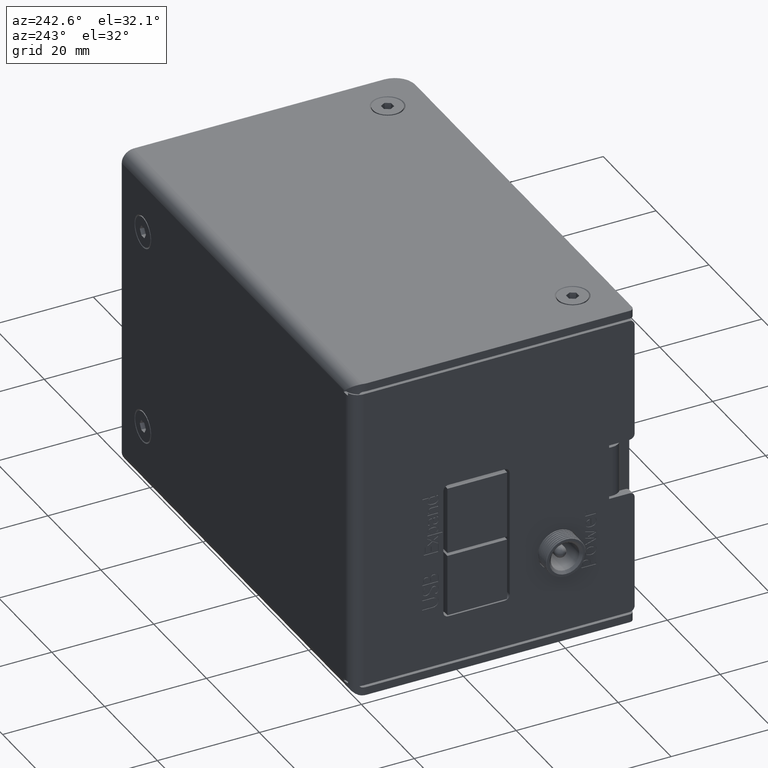
[diagram: clean part render]
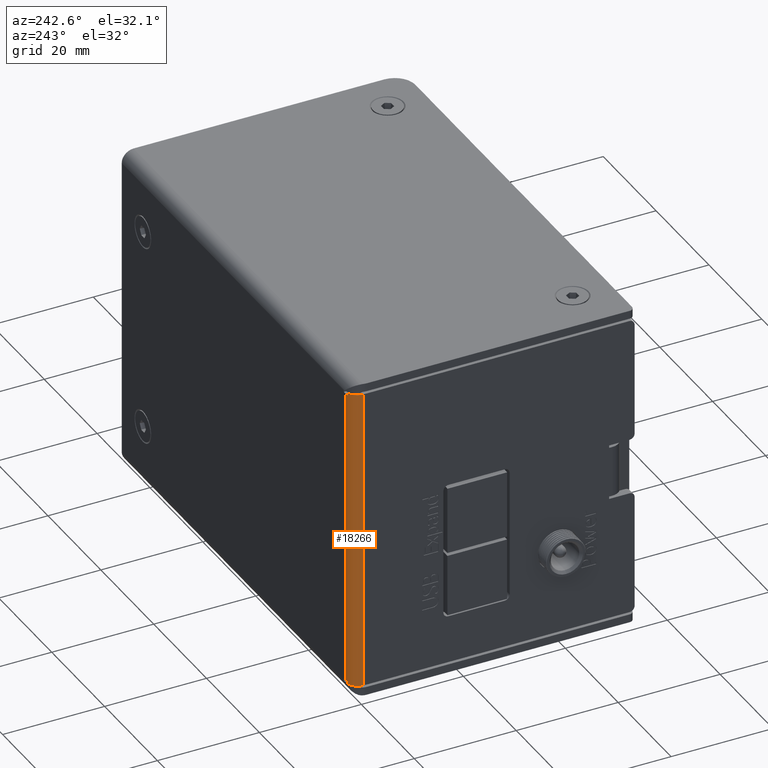
[diagram: same view with one face highlighted and labeled with its STEP entity id]
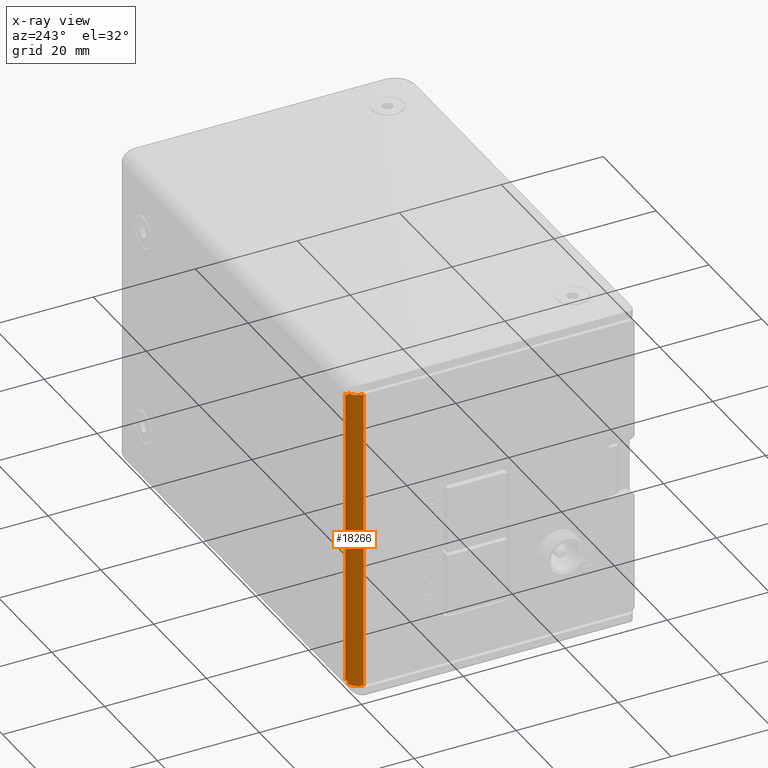
[diagram: x-ray of the same camera — body ghosted, the highlighted face saturated]
A machine part, auxiliary view. The second image highlights one B-rep face of the part: STEP entity #18266.
The next image is the same camera in x-ray: the body ghosted, the highlighted face saturated — about 0% of this face is hidden behind the body in this view.
In plain terms, the highlighted cylindrical surface (edge-blend (fillet) strip) has radius 2.3366 mm, axis along (0, 0, -1).
Its self-contained STEP definition (entity closure, byte-faithful):
#631 = CARTESIAN_POINT ( 'NONE',  ( -38.70300153493759900, 41.95498347007510600, -29.91339999999999600 ) ) ;
#690 = CARTESIAN_POINT ( 'NONE',  ( -37.96640153493761700, 39.73752546596318800, -29.41339999999999600 ) ) ;
#714 = DIRECTION ( 'NONE',  ( -0.0000000000000000000, -0.0000000000000000000, -1.000000000000000000 ) ) ;
#1486 = CIRCLE ( 'NONE', #36183, 2.336599999999994500 ) ;
#3655 = CARTESIAN_POINT ( 'NONE',  ( -37.96640153493761700, 39.73752546596318800, -29.91339999999999600 ) ) ;
#3946 = AXIS2_PLACEMENT_3D ( 'NONE', #690, #49252, #27696 ) ;
#5749 = LINE ( 'NONE', #631, #65399 ) ;
#7286 = VECTOR ( 'NONE', #15389, 1000.000000000000000 ) ;
#8407 = VERTEX_POINT ( 'NONE', #15579 ) ;
#8443 = CARTESIAN_POINT ( 'NONE',  ( -38.70300153493759900, 41.95498347007510600, 29.91340000000000300 ) ) ;
#8768 = AXIS2_PLACEMENT_3D ( 'NONE', #63889, #53051, #31231 ) ;
#9683 = ORIENTED_EDGE ( 'NONE', *, *, #29442, .F. ) ;
#10176 = EDGE_CURVE ( 'NONE', #8407, #61623, #1486, .T. ) ;
#10770 = CARTESIAN_POINT ( 'NONE',  ( -38.70300153493759900, 41.95498347007510600, 29.41340000000000600 ) ) ;
#11147 = VECTOR ( 'NONE', #15421, 1000.000000000000000 ) ;
#11427 = CARTESIAN_POINT ( 'NONE',  ( -37.96640153493761700, 42.07412546596318500, -29.66339999999999200 ) ) ;
#12934 = EDGE_CURVE ( 'NONE', #47992, #42582, #5749, .T. ) ;
#13010 = CIRCLE ( 'NONE', #3946, 2.336599999999994500 ) ;
#15389 = DIRECTION ( 'NONE',  ( -0.0000000000000000000, -0.0000000000000000000, -1.000000000000000000 ) ) ;
#15421 = DIRECTION ( 'NONE',  ( 1.524529516703132800E-031, -5.299087409721818400E-046, -1.000000000000000000 ) ) ;
#15579 = CARTESIAN_POINT ( 'NONE',  ( -40.30300153493761400, 39.73752546596319500, 29.91340000000000300 ) ) ;
#17243 = CIRCLE ( 'NONE', #58751, 2.336599999999994500 ) ;
#18109 = CARTESIAN_POINT ( 'NONE',  ( -37.96640153493761700, 42.07412546596318500, 29.41340000000000300 ) ) ;
#18266 = ADVANCED_FACE ( 'NONE', ( #25220 ), #20176, .T. ) ;
#19110 = VERTEX_POINT ( 'NONE', #66932 ) ;
#20176 = CYLINDRICAL_SURFACE ( 'NONE', #51445, 2.336599999999994500 ) ;
#21782 = EDGE_CURVE ( 'NONE', #42582, #33718, #13010, .T. ) ;
#22453 = DIRECTION ( 'NONE',  ( -0.0000000000000000000, -0.0000000000000000000, 1.000000000000000000 ) ) ;
#22875 = LINE ( 'NONE', #30956, #11147 ) ;
#24146 = LINE ( 'NONE', #46652, #7286 ) ;
#25220 = FACE_OUTER_BOUND ( 'NONE', #47733, .T. ) ;
#27696 = DIRECTION ( 'NONE',  ( 1.000000000000000000, -5.939308314565817400E-015, 0.0000000000000000000 ) ) ;
#28355 = CARTESIAN_POINT ( 'NONE',  ( -38.70300153493759900, 41.95498347007510600, -29.41339999999999600 ) ) ;
#29442 = EDGE_CURVE ( 'NONE', #33718, #59117, #41019, .T. ) ;
#30606 = DIRECTION ( 'NONE',  ( 0.0000000000000000000, 0.0000000000000000000, -1.000000000000000000 ) ) ;
#30956 = CARTESIAN_POINT ( 'NONE',  ( -40.30300153493761400, 39.73752546596319500, 3.469446951953607100E-015 ) ) ;
#31231 = DIRECTION ( 'NONE',  ( 1.000000000000000000, -5.939308314565817400E-015, 0.0000000000000000000 ) ) ;
#31842 = EDGE_CURVE ( 'NONE', #61623, #52606, #24146, .T. ) ;
#33718 = VERTEX_POINT ( 'NONE', #54504 ) ;
#33860 = DIRECTION ( 'NONE',  ( -1.000000000000000000, 2.969654157282908700E-015, 0.0000000000000000000 ) ) ;
#34070 = CIRCLE ( 'NONE', #8768, 2.336599999999994500 ) ;
#34521 = CARTESIAN_POINT ( 'NONE',  ( -38.70300153493759900, 41.95498347007510600, -29.91339999999999600 ) ) ;
#35437 = ORIENTED_EDGE ( 'NONE', *, *, #12934, .F. ) ;
#36183 = AXIS2_PLACEMENT_3D ( 'NONE', #59890, #714, #37533 ) ;
#36218 = DIRECTION ( 'NONE',  ( -1.000000000000000000, 0.0000000000000000000, 0.0000000000000000000 ) ) ;
#37533 = DIRECTION ( 'NONE',  ( -1.000000000000000000, 0.0000000000000000000, 0.0000000000000000000 ) ) ;
#40790 = ORIENTED_EDGE ( 'NONE', *, *, #49555, .F. ) ;
#41019 = LINE ( 'NONE', #11427, #67953 ) ;
#42274 = ORIENTED_EDGE ( 'NONE', *, *, #31842, .T. ) ;
#42582 = VERTEX_POINT ( 'NONE', #28355 ) ;
#44658 = CARTESIAN_POINT ( 'NONE',  ( -37.96640153493761700, 39.73752546596318800, -29.66339999999999200 ) ) ;
#46652 = CARTESIAN_POINT ( 'NONE',  ( -38.70300153493759900, 41.95498347007510600, 29.91340000000000300 ) ) ;
#47604 = EDGE_CURVE ( 'NONE', #19110, #47992, #17243, .T. ) ;
#47733 = EDGE_LOOP ( 'NONE', ( #40790, #49280, #42274, #49180, #9683, #58074, #35437, #50685 ) ) ;
#47992 = VERTEX_POINT ( 'NONE', #34521 ) ;
#48474 = DIRECTION ( 'NONE',  ( -0.0000000000000000000, -0.0000000000000000000, 1.000000000000000000 ) ) ;
#49180 = ORIENTED_EDGE ( 'NONE', *, *, #57800, .T. ) ;
#49252 = DIRECTION ( 'NONE',  ( 0.0000000000000000000, -0.0000000000000000000, -1.000000000000000000 ) ) ;
#49280 = ORIENTED_EDGE ( 'NONE', *, *, #10176, .T. ) ;
#49555 = EDGE_CURVE ( 'NONE', #8407, #19110, #22875, .T. ) ;
#50685 = ORIENTED_EDGE ( 'NONE', *, *, #47604, .F. ) ;
#51445 = AXIS2_PLACEMENT_3D ( 'NONE', #44658, #65391, #33860 ) ;
#52606 = VERTEX_POINT ( 'NONE', #10770 ) ;
#53051 = DIRECTION ( 'NONE',  ( 0.0000000000000000000, -0.0000000000000000000, -1.000000000000000000 ) ) ;
#54504 = CARTESIAN_POINT ( 'NONE',  ( -37.96640153493761700, 42.07412546596318500, -29.41339999999999600 ) ) ;
#57800 = EDGE_CURVE ( 'NONE', #52606, #59117, #34070, .T. ) ;
#58074 = ORIENTED_EDGE ( 'NONE', *, *, #21782, .F. ) ;
#58751 = AXIS2_PLACEMENT_3D ( 'NONE', #3655, #30606, #36218 ) ;
#59117 = VERTEX_POINT ( 'NONE', #18109 ) ;
#59890 = CARTESIAN_POINT ( 'NONE',  ( -37.96640153493761700, 39.73752546596318800, 29.91340000000000300 ) ) ;
#61623 = VERTEX_POINT ( 'NONE', #8443 ) ;
#63889 = CARTESIAN_POINT ( 'NONE',  ( -37.96640153493761700, 39.73752546596318800, 29.41340000000000600 ) ) ;
#65391 = DIRECTION ( 'NONE',  ( 0.0000000000000000000, 0.0000000000000000000, -1.000000000000000000 ) ) ;
#65399 = VECTOR ( 'NONE', #48474, 1000.000000000000000 ) ;
#66932 = CARTESIAN_POINT ( 'NONE',  ( -40.30300153493761400, 39.73752546596319500, -29.91339999999999600 ) ) ;
#67953 = VECTOR ( 'NONE', #22453, 1000.000000000000000 ) ;